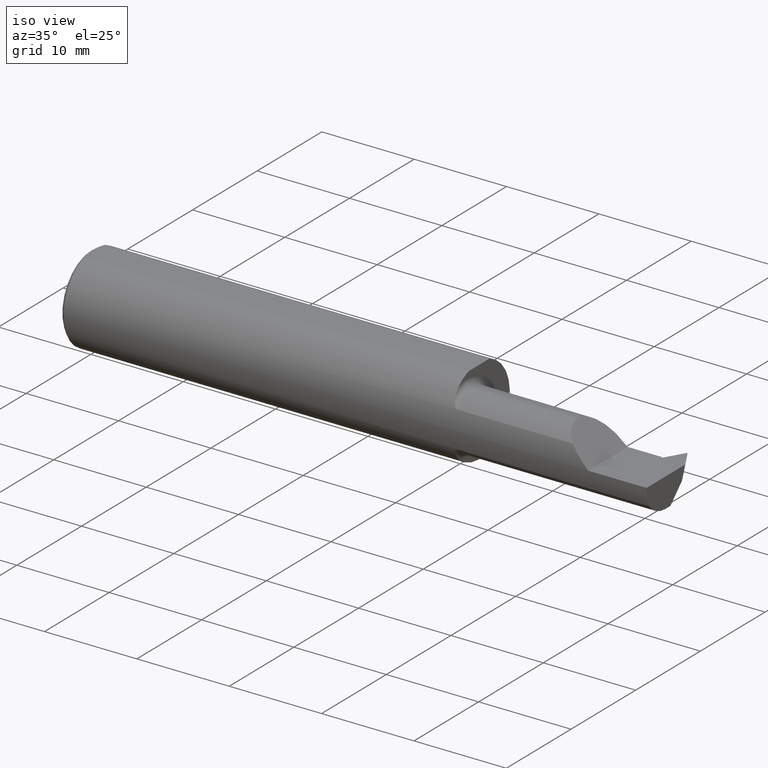
[diagram: clean part render]
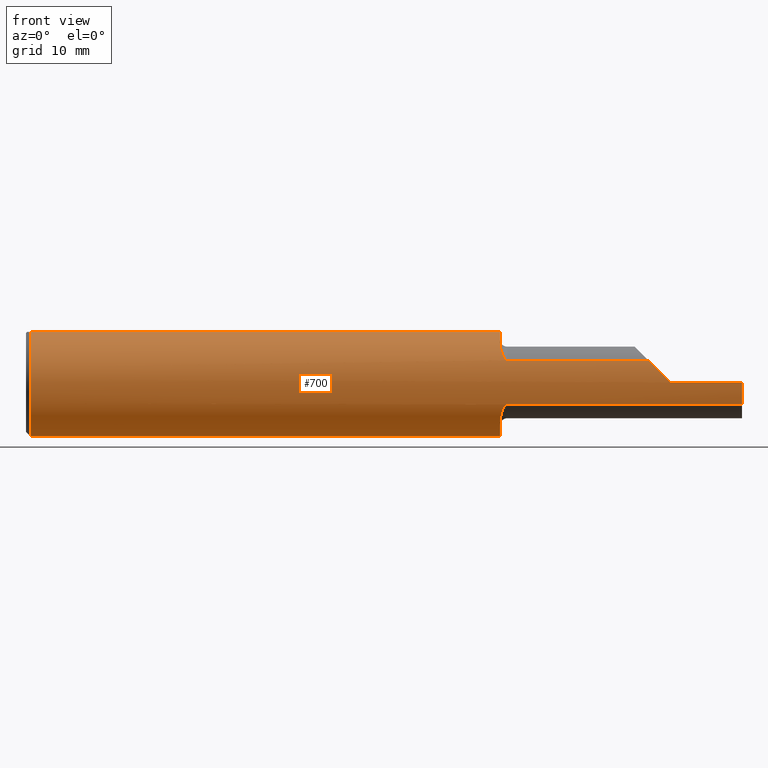
[diagram: tour spotlight — one face highlighted and labeled with its STEP entity id]
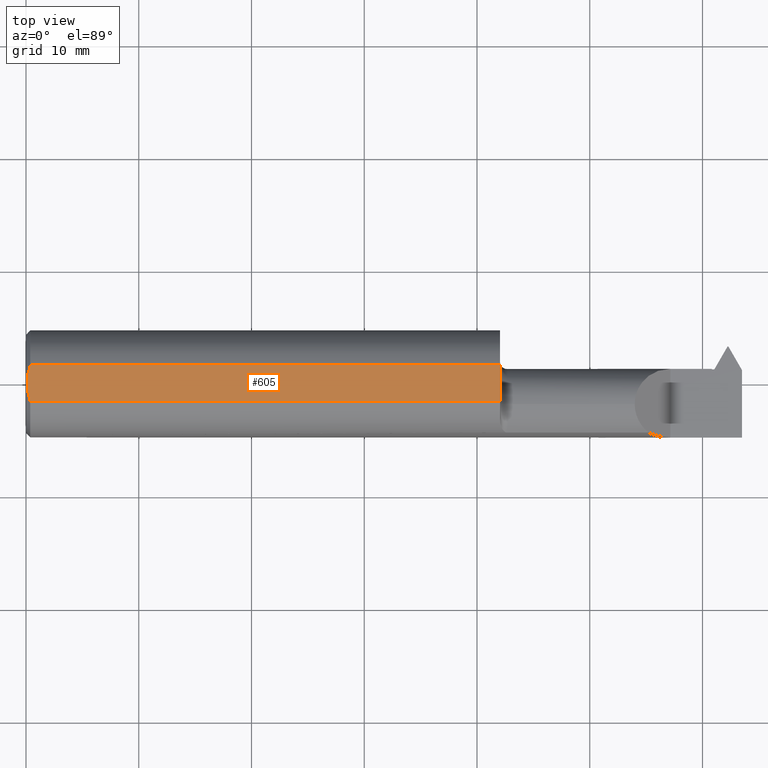
[diagram: tour spotlight — one face highlighted and labeled with its STEP entity id]
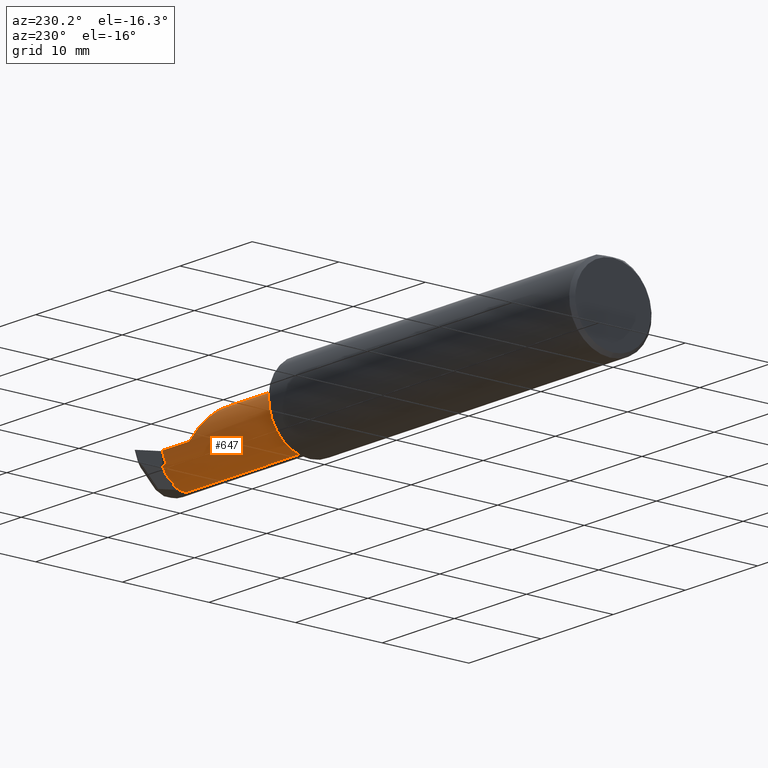
[diagram: tour spotlight — one face highlighted and labeled with its STEP entity id]
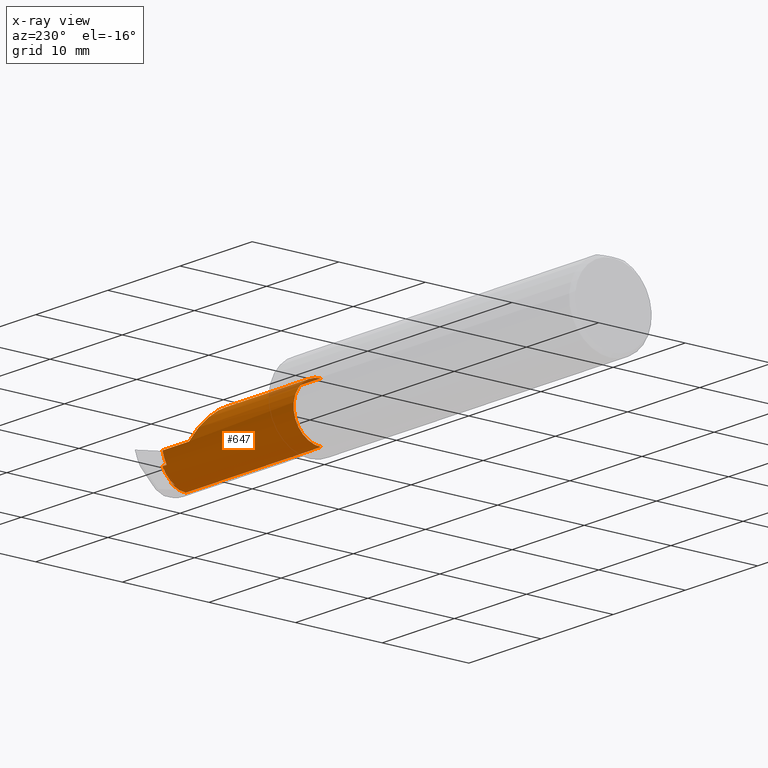
[diagram: x-ray of the same camera — body ghosted, this tour face saturated]
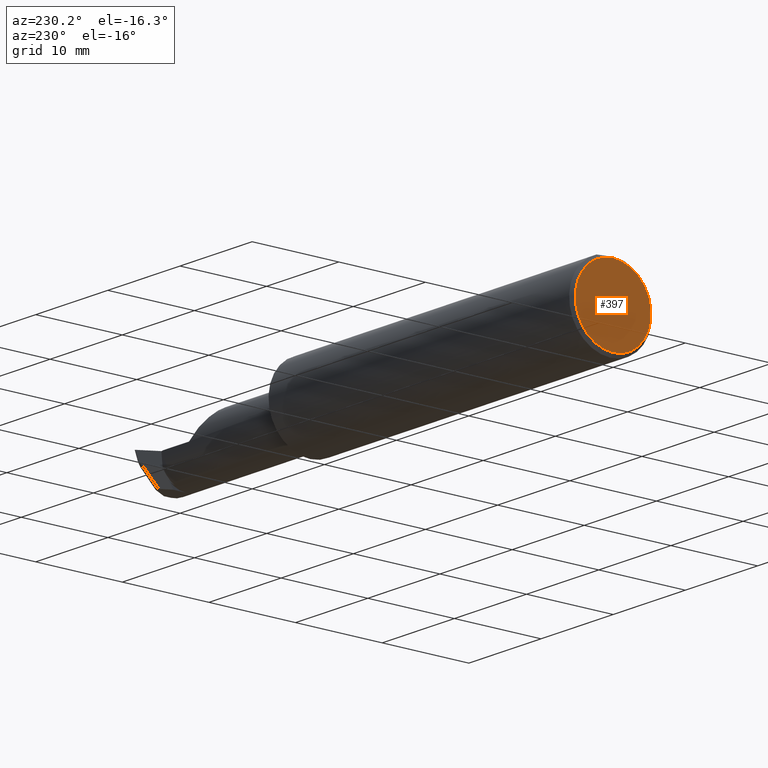
[diagram: tour spotlight — one face highlighted and labeled with its STEP entity id]
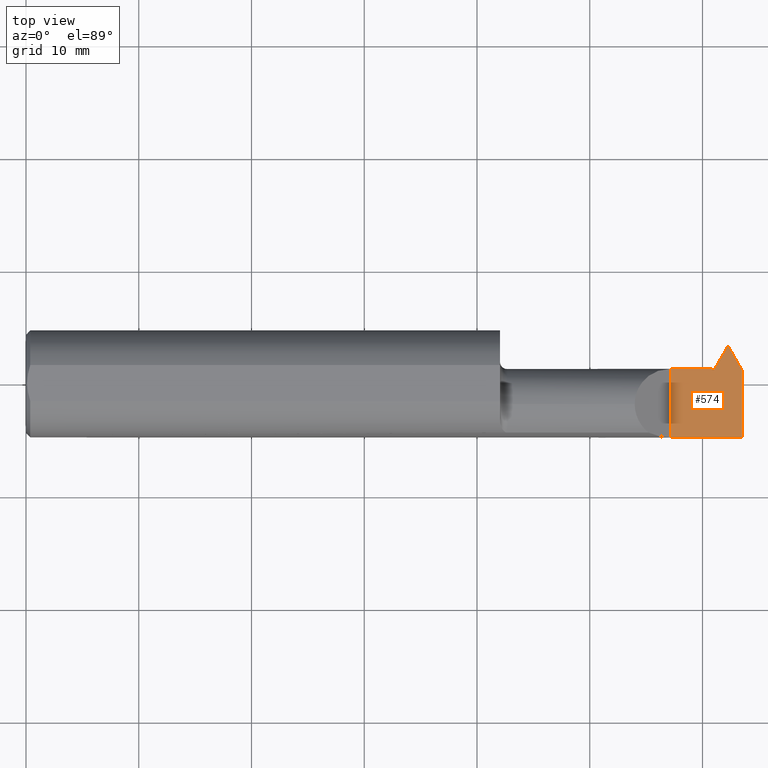
[diagram: tour spotlight — one face highlighted and labeled with its STEP entity id]
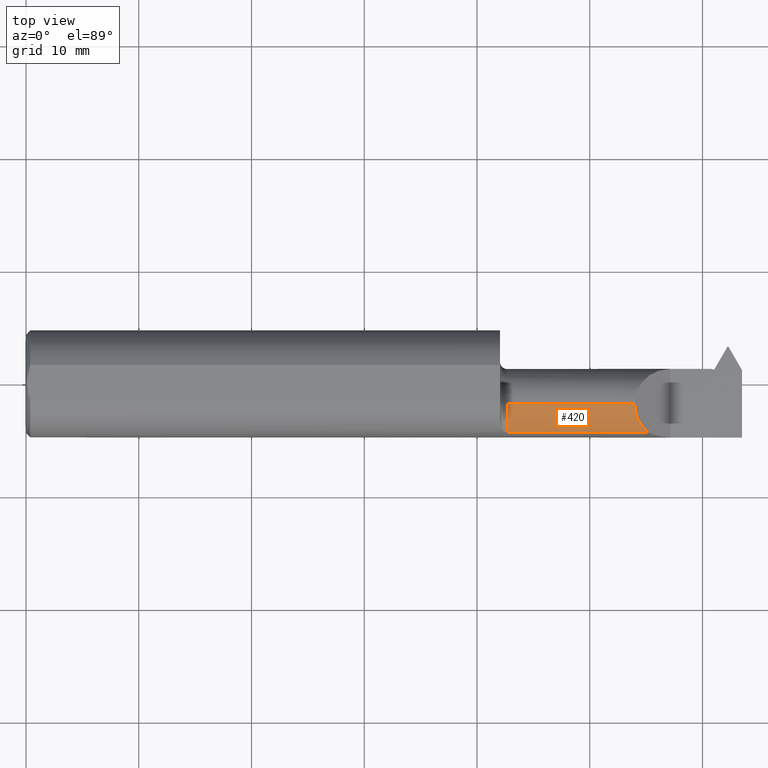
[diagram: tour spotlight — one face highlighted and labeled with its STEP entity id]
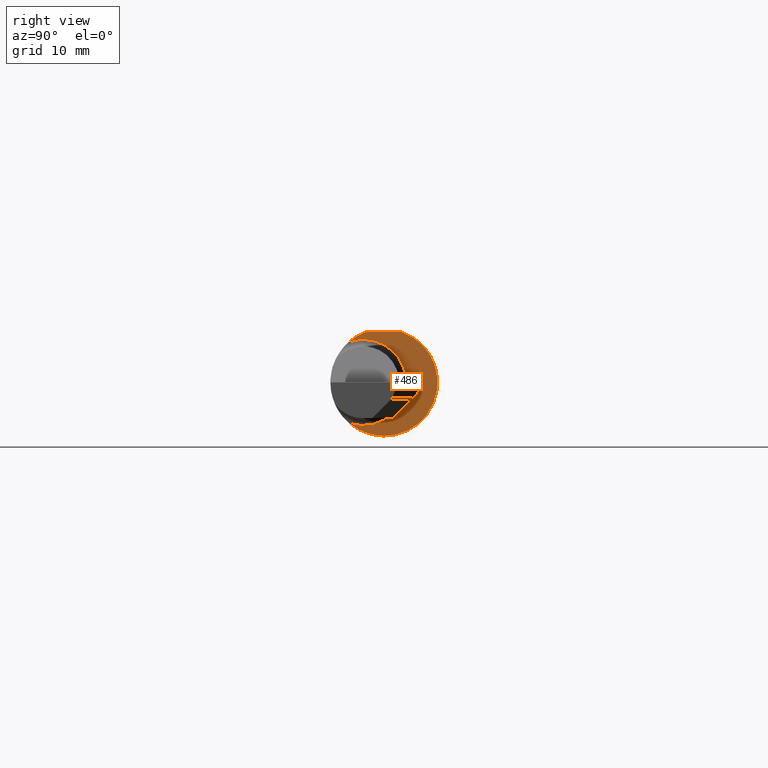
[diagram: tour spotlight — one face highlighted and labeled with its STEP entity id]
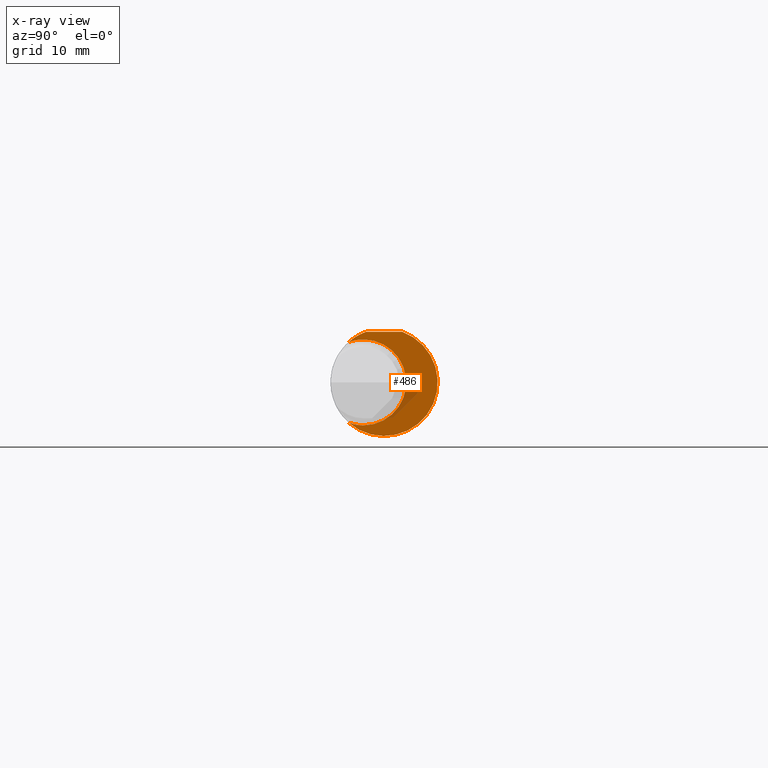
[diagram: x-ray of the same camera — body ghosted, this tour face saturated]
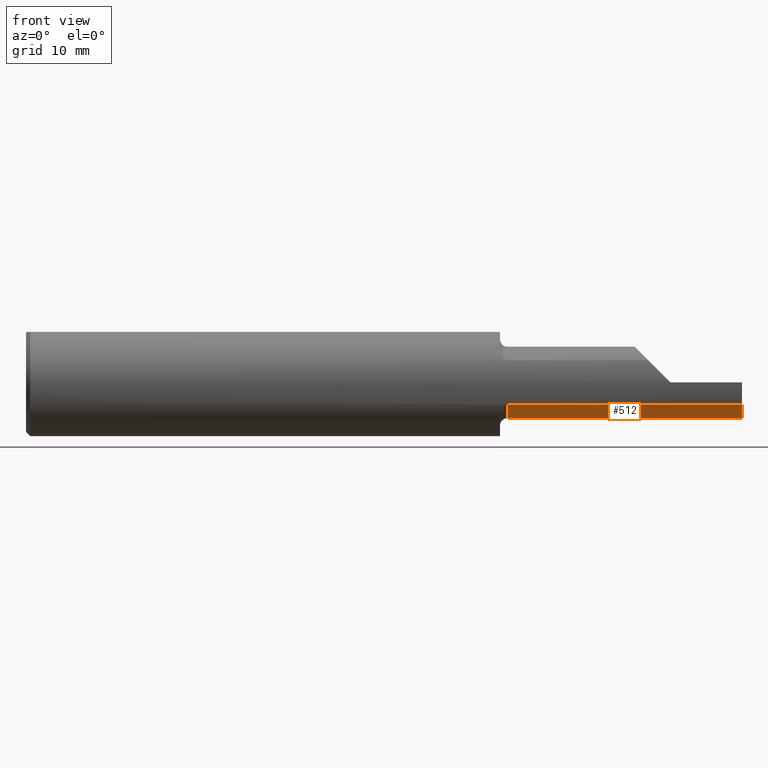
[diagram: tour spotlight — one face highlighted and labeled with its STEP entity id]
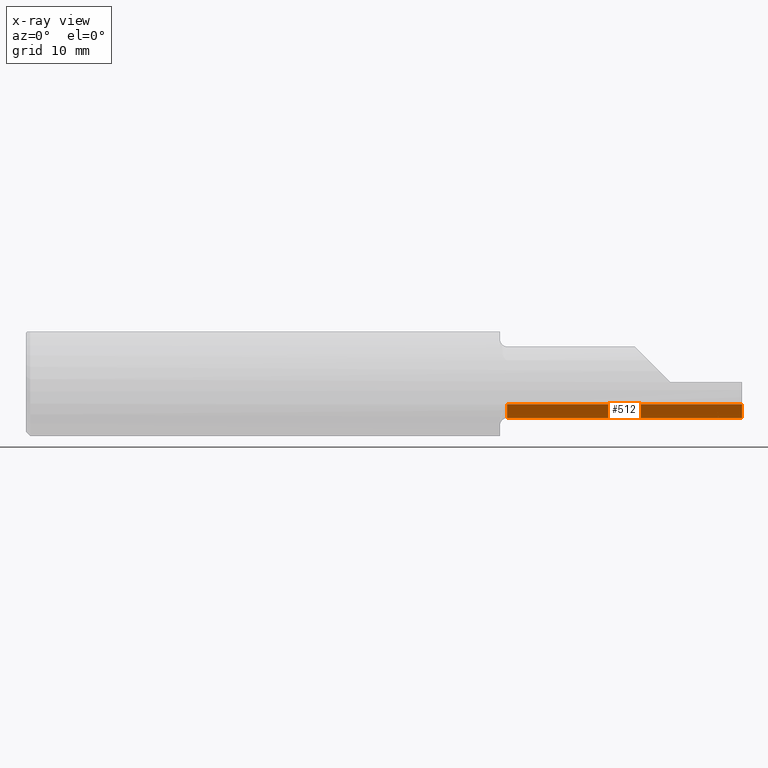
[diagram: x-ray of the same camera — body ghosted, this tour face saturated]
A machine part: a face-by-face anatomy tour. The part has 28 B-rep faces; the first image is the clean iso view, then the 8 largest visible faces are spotlighted one at a time (largest first), each with its STEP entity span.

Face 1 — front view, entity #700. In plain terms, the highlighted cylindrical surface (partial cylindrical patch) has radius 4.7587 mm, axis along (-1, -0, -0).
Definition (entity closure, byte-faithful):
#17 = VERTEX_POINT ( 'NONE', #983 ) ;
#19 = EDGE_CURVE ( 'NONE', #954, #35, #969, .T. ) ;
#20 = CARTESIAN_POINT ( 'NONE',  ( 0.01500000000000079048, -0.06325108694718213631, 0.1763499999999999790 ) ) ;
#24 = CYLINDRICAL_SURFACE ( 'NONE', #946, 0.1873499999999999888 ) ;
#25 = CARTESIAN_POINT ( 'NONE',  ( 2.250000000000000000, -0.1873499999999999610, -6.429183357567478880E-17 ) ) ;
#30 = AXIS2_PLACEMENT_3D ( 'NONE', #48, #417, #630 ) ;
#31 = DIRECTION ( 'NONE',  ( 0.000000000000000000, 0.000000000000000000, 1.000000000000000000 ) ) ;
#34 = CARTESIAN_POINT ( 'NONE',  ( 1.672402770576354669, -0.1687580686002391195, 0.08138221229323114314 ) ) ;
#35 = VERTEX_POINT ( 'NONE', #619 ) ;
#42 = CARTESIAN_POINT ( 'NONE',  ( 1.678119196786478584, -0.1707639599170699130, 0.07706940050007769771 ) ) ;
#48 = CARTESIAN_POINT ( 'NONE',  ( 0.01500000000000079568, 0.000000000000000000, 0.000000000000000000 ) ) ;
#65 = CARTESIAN_POINT ( 'NONE',  ( 2.223443328839086242, -0.1873000608423838198, 0.02690667116091345970 ) ) ;
#72 = DIRECTION ( 'NONE',  ( -1.000000000000000000, -0.000000000000000000, -0.000000000000000000 ) ) ;
#78 = CARTESIAN_POINT ( 'NONE',  ( 1.655000000000000249, 0.000000000000000000, 0.000000000000000000 ) ) ;
#80 = CARTESIAN_POINT ( 'NONE',  ( 1.676412728618681180, -0.1703887611576448968, -0.07790427710188339849 ) ) ;
#99 = DIRECTION ( 'NONE',  ( 0.000000000000000000, 0.000000000000000000, 1.000000000000000000 ) ) ;
#105 = VERTEX_POINT ( 'NONE', #306 ) ;
#107 = DIRECTION ( 'NONE',  ( 0.000000000000000000, 0.000000000000000000, -1.000000000000000000 ) ) ;
#111 = AXIS2_PLACEMENT_3D ( 'NONE', #925, #247, #31 ) ;
#122 = EDGE_CURVE ( 'NONE', #726, #139, #609, .T. ) ;
#123 = EDGE_LOOP ( 'NONE', ( #152, #516, #643, #557, #462, #549, #213, #170, #439, #646, #359, #206, #281, #297 ) ) ;
#125 = CARTESIAN_POINT ( 'NONE',  ( 1.663471533398396041, -0.1602710687746327634, 0.09725558226055719402 ) ) ;
#131 = EDGE_CURVE ( 'NONE', #105, #35, #237, .T. ) ;
#139 = VERTEX_POINT ( 'NONE', #599 ) ;
#150 = VERTEX_POINT ( 'NONE', #530 ) ;
#152 = ORIENTED_EDGE ( 'NONE', *, *, #131, .F. ) ;
#155 = EDGE_CURVE ( 'NONE', #615, #370, #764, .T. ) ;
#170 = ORIENTED_EDGE ( 'NONE', *, *, #744, .F. ) ;
#187 = DIRECTION ( 'NONE',  ( 1.000000000000000000, 0.000000000000000000, 0.000000000000000000 ) ) ;
#189 = CARTESIAN_POINT ( 'NONE',  ( 1.661436535702075945, -0.1564726682735308738, 0.1032790376104839730 ) ) ;
#194 = CIRCLE ( 'NONE', #689, 0.1873499999999999888 ) ;
#202 = CARTESIAN_POINT ( 'NONE',  ( 1.673558876738254320, -0.1693773766851885965, 0.08007975305238296260 ) ) ;
#206 = ORIENTED_EDGE ( 'NONE', *, *, #122, .T. ) ;
#213 = ORIENTED_EDGE ( 'NONE', *, *, #952, .T. ) ;
#225 = CIRCLE ( 'NONE', #30, 0.1873499999999999888 ) ;
#229 = EDGE_CURVE ( 'NONE', #954, #139, #499, .T. ) ;
#231 = CARTESIAN_POINT ( 'NONE',  ( 1.669299808151414544, -0.1667638676707169920, -0.08543442767820320916 ) ) ;
#233 = CARTESIAN_POINT ( 'NONE',  ( 2.500000000000000000, -0.1873499999999998222, -6.429183357567480113E-17 ) ) ;
#234 = CARTESIAN_POINT ( 'NONE',  ( 2.500000000000000000, 0.06325108694718213631, 0.1763499999999999790 ) ) ;
#237 = LINE ( 'NONE', #243, #736 ) ;
#243 = CARTESIAN_POINT ( 'NONE',  ( 2.027500000000000302, -0.1707639599170698019, -0.07706940050007766996 ) ) ;
#244 = CARTESIAN_POINT ( 'NONE',  ( 1.656555970616603979, -0.1439812988895032841, -0.1207222593517345427 ) ) ;
#247 = DIRECTION ( 'NONE',  ( -1.000000000000000000, -0.000000000000000000, -0.000000000000000000 ) ) ;
#256 = CARTESIAN_POINT ( 'NONE',  ( 2.500000000000000000, -0.06325108694718213631, 0.1763499999999999790 ) ) ;
#264 = CARTESIAN_POINT ( 'NONE',  ( 2.173280599499920918, -0.1707639599170693578, 0.07706940050007844711 ) ) ;
#269 = DIRECTION ( 'NONE',  ( 0.000000000000000000, 0.000000000000000000, -1.000000000000000000 ) ) ;
#270 = CARTESIAN_POINT ( 'NONE',  ( 1.658207941101452976, -0.1482224317505124456, 0.1148057762150967581 ) ) ;
#276 = VECTOR ( 'NONE', #855, 39.37007874015748143 ) ;
#281 = ORIENTED_EDGE ( 'NONE', *, *, #229, .F. ) ;
#297 = ORIENTED_EDGE ( 'NONE', *, *, #19, .T. ) ;
#306 = CARTESIAN_POINT ( 'NONE',  ( 2.500000000000000000, -0.1707639599170698019, -0.07706940050007768384 ) ) ;
#320 = CARTESIAN_POINT ( 'NONE',  ( 1.655000000000000249, -0.1232518659295093050, -0.1410992560040422727 ) ) ;
#324 = DIRECTION ( 'NONE',  ( -1.000000000000000000, -0.000000000000000000, -0.000000000000000000 ) ) ;
#340 = VECTOR ( 'NONE', #748, 39.37007874015748143 ) ;
#345 = CARTESIAN_POINT ( 'NONE',  ( 1.667679829691370630, -0.1652024577544480843, 0.08842811073770914798 ) ) ;
#354 = CARTESIAN_POINT ( 'NONE',  ( 1.676406265684706742, -0.1703893073657099244, 0.07790344355110689900 ) ) ;
#359 = ORIENTED_EDGE ( 'NONE', *, *, #962, .T. ) ;
#361 = DIRECTION ( 'NONE',  ( 1.000000000000000000, 0.000000000000000000, 0.000000000000000000 ) ) ;
#370 = VERTEX_POINT ( 'NONE', #25 ) ;
#384 = CARTESIAN_POINT ( 'NONE',  ( 1.680000000000000160, -0.1707639599170698019, -0.07706940050007766996 ) ) ;
#386 = EDGE_CURVE ( 'NONE', #662, #150, #194, .T. ) ;
#387 = CARTESIAN_POINT ( 'NONE',  ( 1.678132574457247950, -0.1707639599170699130, -0.07706940050007766996 ) ) ;
#408 = CARTESIAN_POINT ( 'NONE',  ( 2.500000000000000000, 0.000000000000000000, 0.000000000000000000 ) ) ;
#417 = DIRECTION ( 'NONE',  ( 1.000000000000000000, -0.000000000000000000, -0.000000000000000000 ) ) ;
#423 = CARTESIAN_POINT ( 'NONE',  ( 1.655000000000000249, -0.1232518659295093050, 0.1410992560040422727 ) ) ;
#435 = EDGE_CURVE ( 'NONE', #777, #729, #735, .T. ) ;
#439 = ORIENTED_EDGE ( 'NONE', *, *, #687, .T. ) ;
#460 = CARTESIAN_POINT ( 'NONE',  ( 1.663464385422889436, -0.1602677418389839570, -0.09726402398944666849 ) ) ;
#462 = ORIENTED_EDGE ( 'NONE', *, *, #621, .T. ) ;
#464 = DIRECTION ( 'NONE',  ( 1.000000000000000000, -0.000000000000000000, -0.000000000000000000 ) ) ;
#471 = AXIS2_PLACEMENT_3D ( 'NONE', #78, #818, #606 ) ;
#473 = DIRECTION ( 'NONE',  ( -1.000000000000000000, -0.000000000000000000, -0.000000000000000000 ) ) ;
#481 = DIRECTION ( 'NONE',  ( 0.000000000000000000, 0.000000000000000000, -1.000000000000000000 ) ) ;
#487 = LINE ( 'NONE', #256, #276 ) ;
#494 = CARTESIAN_POINT ( 'NONE',  ( 1.669265545959849995, -0.1667364282984900303, 0.08548857678050762743 ) ) ;
#499 = CIRCLE ( 'NONE', #471, 0.1873499999999999888 ) ;
#514 = CARTESIAN_POINT ( 'NONE',  ( 2.250000000000000000, -0.1873496730715054903, 0.0003499999999991848933 ) ) ;
#516 = ORIENTED_EDGE ( 'NONE', *, *, #683, .F. ) ;
#523 = CARTESIAN_POINT ( 'NONE',  ( 1.673606395404011238, -0.1693970531853373485, -0.08003777040702683698 ) ) ;
#530 = CARTESIAN_POINT ( 'NONE',  ( 0.01500000000000079568, 0.000000000000000000, -0.1873499999999999888 ) ) ;
#536 = CARTESIAN_POINT ( 'NONE',  ( 1.661432066522875450, -0.1564710502669967307, -0.1032857535508500957 ) ) ;
#544 = CARTESIAN_POINT ( 'NONE',  ( 1.655000000000000249, 0.000000000000000000, 0.000000000000000000 ) ) ;
#549 = ORIENTED_EDGE ( 'NONE', *, *, #435, .F. ) ;
#552 = FACE_OUTER_BOUND ( 'NONE', #123, .T. ) ;
#556 = CARTESIAN_POINT ( 'NONE',  ( 1.654999999999999805, -0.1287813884456101288, 0.1362691528049925216 ) ) ;
#557 = ORIENTED_EDGE ( 'NONE', *, *, #762, .T. ) ;
#581 = VECTOR ( 'NONE', #324, 39.37007874015748143 ) ;
#599 = CARTESIAN_POINT ( 'NONE',  ( 1.655000000000000249, 0.06325108694718213631, 0.1763499999999999790 ) ) ;
#606 = DIRECTION ( 'NONE',  ( 0.000000000000000000, 0.000000000000000000, -1.000000000000000000 ) ) ;
#609 = LINE ( 'NONE', #234, #340 ) ;
#610 = CARTESIAN_POINT ( 'NONE',  ( 1.672430508348289102, -0.1687732045416835414, -0.08135065796925473880 ) ) ;
#615 = VERTEX_POINT ( 'NONE', #233 ) ;
#617 = CARTESIAN_POINT ( 'NONE',  ( 1.655000000000000249, -0.1232518659295093050, 0.1410992560040422727 ) ) ;
#619 = CARTESIAN_POINT ( 'NONE',  ( 1.680000000000000160, -0.1707639599170698019, -0.07706940050007766996 ) ) ;
#621 = EDGE_CURVE ( 'NONE', #631, #729, #966, .T. ) ;
#630 = DIRECTION ( 'NONE',  ( 0.000000000000000000, 0.000000000000000000, -1.000000000000000000 ) ) ;
#631 = VERTEX_POINT ( 'NONE', #514 ) ;
#633 = CARTESIAN_POINT ( 'NONE',  ( 2.500000000000000000, 0.000000000000000000, 0.000000000000000000 ) ) ;
#639 = CARTESIAN_POINT ( 'NONE',  ( 0.01500000000000079568, 0.000000000000000000, 0.000000000000000000 ) ) ;
#643 = ORIENTED_EDGE ( 'NONE', *, *, #155, .T. ) ;
#644 = CARTESIAN_POINT ( 'NONE',  ( 2.027500000000000302, -0.1707639599170698019, 0.07706940050007766996 ) ) ;
#646 = ORIENTED_EDGE ( 'NONE', *, *, #386, .T. ) ;
#659 = AXIS2_PLACEMENT_3D ( 'NONE', #544, #187, #481 ) ;
#662 = VERTEX_POINT ( 'NONE', #20 ) ;
#663 = CARTESIAN_POINT ( 'NONE',  ( 2.173280599499920918, -0.1707639599170693578, 0.07706940050007844711 ) ) ;
#674 = CARTESIAN_POINT ( 'NONE',  ( 2.500000000000000000, -0.1873499999999999888, -6.429183357567480113E-17 ) ) ;
#683 = EDGE_CURVE ( 'NONE', #615, #105, #691, .T. ) ;
#687 = EDGE_CURVE ( 'NONE', #17, #662, #487, .T. ) ;
#689 = AXIS2_PLACEMENT_3D ( 'NONE', #639, #464, #269 ) ;
#691 = CIRCLE ( 'NONE', #899, 0.1873499999999999888 ) ;
#692 = VERTEX_POINT ( 'NONE', #617 ) ;
#700 = ADVANCED_FACE ( 'NONE', ( #552 ), #24, .T. ) ;
#715 = CARTESIAN_POINT ( 'NONE',  ( 1.655424272813302844, -0.1340287381043765158, 0.1311054684688080785 ) ) ;
#726 = VERTEX_POINT ( 'NONE', #775 ) ;
#729 = VERTEX_POINT ( 'NONE', #264 ) ;
#735 = LINE ( 'NONE', #644, #869 ) ;
#736 = VECTOR ( 'NONE', #72, 39.37007874015748143 ) ;
#744 = EDGE_CURVE ( 'NONE', #17, #692, #789, .T. ) ;
#747 = CARTESIAN_POINT ( 'NONE',  ( 2.197486258657502134, -0.1816884877910424079, 0.05286374134249727241 ) ) ;
#748 = DIRECTION ( 'NONE',  ( 1.000000000000000000, 0.000000000000000000, 0.000000000000000000 ) ) ;
#762 = EDGE_CURVE ( 'NONE', #370, #631, #911, .T. ) ;
#764 = LINE ( 'NONE', #674, #581 ) ;
#775 = CARTESIAN_POINT ( 'NONE',  ( 0.01500000000000079568, 0.06325108694718213631, 0.1763499999999999790 ) ) ;
#777 = VERTEX_POINT ( 'NONE', #845 ) ;
#789 = CIRCLE ( 'NONE', #659, 0.1873499999999999888 ) ;
#796 = CARTESIAN_POINT ( 'NONE',  ( 1.657031986092417419, -0.1437385609081069104, 0.1203809478627894392 ) ) ;
#818 = DIRECTION ( 'NONE',  ( 1.000000000000000000, 0.000000000000000000, 0.000000000000000000 ) ) ;
#845 = CARTESIAN_POINT ( 'NONE',  ( 1.680000000000000160, -0.1707639599170698019, 0.07706940050007766996 ) ) ;
#848 = CARTESIAN_POINT ( 'NONE',  ( 1.667704374933955513, -0.1652286770924342452, -0.08837992419368186081 ) ) ;
#850 = DIRECTION ( 'NONE',  ( 1.000000000000000000, 0.000000000000000000, 0.000000000000000000 ) ) ;
#855 = DIRECTION ( 'NONE',  ( -1.000000000000000000, -0.000000000000000000, -0.000000000000000000 ) ) ;
#862 = CARTESIAN_POINT ( 'NONE',  ( 1.680000000000000160, -0.1707639599170698019, 0.07706940050007766996 ) ) ;
#869 = VECTOR ( 'NONE', #361, 39.37007874015748143 ) ;
#899 = AXIS2_PLACEMENT_3D ( 'NONE', #633, #850, #107 ) ;
#911 = CIRCLE ( 'NONE', #111, 0.1873499999999999888 ) ;
#912 = CARTESIAN_POINT ( 'NONE',  ( 1.655000000000001137, -0.1343272889970693051, -0.1314247431986991232 ) ) ;
#925 = CARTESIAN_POINT ( 'NONE',  ( 2.250000000000000000, 0.000000000000000000, 0.000000000000000000 ) ) ;
#927 = CARTESIAN_POINT ( 'NONE',  ( 1.655000000000000249, -0.1232518659295093050, -0.1410992560040422727 ) ) ;
#936 = B_SPLINE_CURVE_WITH_KNOTS ( 'NONE', 3,
 ( #862, #42, #354, #202, #34, #494, #345, #125, #189, #270, #796, #715, #556, #423 ),
 .UNSPECIFIED., .F., .F.,
 ( 4, 2, 2, 2, 2, 2, 4 ),
 ( 0.000000000000000000, 0.0001403017184444821667, 0.0002806034368889643335, 0.0005612068737779168492, 0.001122413747555820905, 0.001683620621333724744, 0.002244827495111628799 ),
 .UNSPECIFIED. ) ;
#946 = AXIS2_PLACEMENT_3D ( 'NONE', #408, #473, #99 ) ;
#952 = EDGE_CURVE ( 'NONE', #777, #692, #936, .T. ) ;
#954 = VERTEX_POINT ( 'NONE', #927 ) ;
#962 = EDGE_CURVE ( 'NONE', #150, #726, #225, .T. ) ;
#966 =( BOUNDED_CURVE ( )  B_SPLINE_CURVE ( 3, ( #973, #65, #747, #663 ),
 .UNSPECIFIED., .F., .F. ) 
 B_SPLINE_CURVE_WITH_KNOTS ( ( 4, 4 ),
 ( 4.714257142666966161, 5.136341099405672850 ),
 .UNSPECIFIED. ) 
 CURVE ( )  GEOMETRIC_REPRESENTATION_ITEM ( )  RATIONAL_B_SPLINE_CURVE ( ( 1.000000000000000000, 0.9852087820824323439, 0.9852087820824323439, 1.000000000000000000 ) ) 
 REPRESENTATION_ITEM ( '' )  );
#969 = B_SPLINE_CURVE_WITH_KNOTS ( 'NONE', 3,
 ( #320, #912, #244, #536, #460, #848, #231, #610, #523, #80, #387, #384 ),
 .UNSPECIFIED., .F., .F.,
 ( 4, 2, 2, 2, 2, 4 ),
 ( 0.000000000000000000, 0.001104617015978687352, 0.001656925523968030920, 0.001933079777962706282, 0.002071156904960049817, 0.002209234031957392919 ),
 .UNSPECIFIED. ) ;
#973 = CARTESIAN_POINT ( 'NONE',  ( 2.250000000000000000, -0.1873496730715054903, 0.0003499999999991848933 ) ) ;
#983 = CARTESIAN_POINT ( 'NONE',  ( 1.655000000000000249, -0.06325108694718215019, 0.1763499999999999790 ) ) ;

Face 2 — top view, entity #605. In plain terms, the highlighted planar face has unit normal (-0, 0, -1).
Definition (entity closure, byte-faithful):
#6 = CARTESIAN_POINT ( 'NONE',  ( 0.01155577088586097305, 0.05304926503900153634, 0.1763499999999999512 ) ) ;
#7 = DIRECTION ( 'NONE',  ( 0.000000000000000000, -1.000000000000000000, 0.000000000000000000 ) ) ;
#13 = EDGE_CURVE ( 'NONE', #139, #17, #613, .T. ) ;
#14 = ORIENTED_EDGE ( 'NONE', *, *, #167, .T. ) ;
#17 = VERTEX_POINT ( 'NONE', #983 ) ;
#20 = CARTESIAN_POINT ( 'NONE',  ( 0.01500000000000079048, -0.06325108694718213631, 0.1763499999999999790 ) ) ;
#71 = DIRECTION ( 'NONE',  ( -1.000000000000000000, 0.000000000000000000, 0.000000000000000000 ) ) ;
#82 = PLANE ( 'NONE',  #224 ) ;
#122 = EDGE_CURVE ( 'NONE', #726, #139, #609, .T. ) ;
#139 = VERTEX_POINT ( 'NONE', #599 ) ;
#167 = EDGE_CURVE ( 'NONE', #726, #461, #571, .T. ) ;
#224 = AXIS2_PLACEMENT_3D ( 'NONE', #521, #965, #71 ) ;
#234 = CARTESIAN_POINT ( 'NONE',  ( 2.500000000000000000, 0.06325108694718213631, 0.1763499999999999790 ) ) ;
#256 = CARTESIAN_POINT ( 'NONE',  ( 2.500000000000000000, -0.06325108694718213631, 0.1763499999999999790 ) ) ;
#273 = CARTESIAN_POINT ( 'NONE',  ( 0.004991821518933527678, -0.02143118227845419027, 0.1763500000000000068 ) ) ;
#276 = VECTOR ( 'NONE', #855, 39.37007874015748143 ) ;
#340 = VECTOR ( 'NONE', #748, 39.37007874015748143 ) ;
#413 = ORIENTED_EDGE ( 'NONE', *, *, #687, .F. ) ;
#440 = FACE_OUTER_BOUND ( 'NONE', #653, .T. ) ;
#441 = CARTESIAN_POINT ( 'NONE',  ( 0.005015674426658929021, 0.02160712711892616780, 0.1763499999999999790 ) ) ;
#455 = CARTESIAN_POINT ( 'NONE',  ( 0.003999999999998503017, 1.478949923165211460E-16, 0.1763499999999999790 ) ) ;
#457 = EDGE_CURVE ( 'NONE', #461, #662, #950, .T. ) ;
#461 = VERTEX_POINT ( 'NONE', #955 ) ;
#469 = ORIENTED_EDGE ( 'NONE', *, *, #13, .F. ) ;
#487 = LINE ( 'NONE', #256, #276 ) ;
#508 = CARTESIAN_POINT ( 'NONE',  ( 0.003999999999998503017, 1.478949923165211460E-16, 0.1763499999999999790 ) ) ;
#521 = CARTESIAN_POINT ( 'NONE',  ( 0.000000000000000000, 0.1749999999999999889, 0.1763499999999999790 ) ) ;
#571 = B_SPLINE_CURVE_WITH_KNOTS ( 'NONE', 3,
 ( #830, #6, #906, #441, #686, #455 ),
 .UNSPECIFIED., .F., .F.,
 ( 4, 2, 4 ),
 ( 0.004260876108247118113, 0.005070351723613903024, 0.005879827338980687934 ),
 .UNSPECIFIED. ) ;
#599 = CARTESIAN_POINT ( 'NONE',  ( 1.655000000000000249, 0.06325108694718213631, 0.1763499999999999790 ) ) ;
#602 = CARTESIAN_POINT ( 'NONE',  ( 1.655000000000000249, 0.1749999999999999889, 0.1763499999999999790 ) ) ;
#605 = ADVANCED_FACE ( 'NONE', ( #440 ), #82, .F. ) ;
#609 = LINE ( 'NONE', #234, #340 ) ;
#613 = LINE ( 'NONE', #602, #910 ) ;
#653 = EDGE_LOOP ( 'NONE', ( #469, #712, #14, #914, #413 ) ) ;
#654 = CARTESIAN_POINT ( 'NONE',  ( 0.01157529649258904302, -0.05310709997271137461, 0.1763500000000000068 ) ) ;
#662 = VERTEX_POINT ( 'NONE', #20 ) ;
#686 = CARTESIAN_POINT ( 'NONE',  ( 0.004000000000000399070, 0.01076648422130179264, 0.1763500000000000068 ) ) ;
#687 = EDGE_CURVE ( 'NONE', #17, #662, #487, .T. ) ;
#712 = ORIENTED_EDGE ( 'NONE', *, *, #122, .F. ) ;
#726 = VERTEX_POINT ( 'NONE', #775 ) ;
#727 = CARTESIAN_POINT ( 'NONE',  ( 0.004000000000000362640, -0.01076149482173471492, 0.1763499999999999790 ) ) ;
#748 = DIRECTION ( 'NONE',  ( 1.000000000000000000, 0.000000000000000000, 0.000000000000000000 ) ) ;
#775 = CARTESIAN_POINT ( 'NONE',  ( 0.01500000000000079568, 0.06325108694718213631, 0.1763499999999999790 ) ) ;
#798 = CARTESIAN_POINT ( 'NONE',  ( 0.01500000000000079048, -0.06325108694718213631, 0.1763499999999999790 ) ) ;
#805 = CARTESIAN_POINT ( 'NONE',  ( 0.008774081248144433368, -0.04260406931483737974, 0.1763499999999999790 ) ) ;
#830 = CARTESIAN_POINT ( 'NONE',  ( 0.01500000000000079568, 0.06325108694718213631, 0.1763499999999999790 ) ) ;
#855 = DIRECTION ( 'NONE',  ( -1.000000000000000000, -0.000000000000000000, -0.000000000000000000 ) ) ;
#906 = CARTESIAN_POINT ( 'NONE',  ( 0.008798171893809259708, 0.04269596770163366223, 0.1763499999999999790 ) ) ;
#910 = VECTOR ( 'NONE', #7, 39.37007874015748143 ) ;
#914 = ORIENTED_EDGE ( 'NONE', *, *, #457, .T. ) ;
#950 = B_SPLINE_CURVE_WITH_KNOTS ( 'NONE', 3,
 ( #508, #727, #273, #805, #654, #798 ),
 .UNSPECIFIED., .F., .F.,
 ( 4, 2, 4 ),
 ( 0.005879827338980687934, 0.006688927827499994636, 0.007498028316019300470 ),
 .UNSPECIFIED. ) ;
#955 = CARTESIAN_POINT ( 'NONE',  ( 0.003999999999998503017, 1.478949923165211460E-16, 0.1763499999999999790 ) ) ;
#965 = DIRECTION ( 'NONE',  ( -0.000000000000000000, 0.000000000000000000, -1.000000000000000000 ) ) ;
#983 = CARTESIAN_POINT ( 'NONE',  ( 1.655000000000000249, -0.06325108694718215019, 0.1763499999999999790 ) ) ;

Face 3 — auxiliary view, entity #647. An x-ray twin of the same camera follows (body ghosted, this face saturated) — the face is partly hidden behind the body. In plain terms, the highlighted cylindrical surface (edge-blend (fillet) strip) has radius 3.175 mm, axis along (-1, -0, -0).
Definition (entity closure, byte-faithful):
#8 = DIRECTION ( 'NONE',  ( 0.000000000000000000, 0.000000000000000000, 1.000000000000000000 ) ) ;
#9 = CARTESIAN_POINT ( 'NONE',  ( 2.409370448767462314, 0.03851830851078916901, -0.05773402954892806194 ) ) ;
#11 = VECTOR ( 'NONE', #317, 39.37007874015748143 ) ;
#36 = ORIENTED_EDGE ( 'NONE', *, *, #197, .T. ) ;
#54 = CARTESIAN_POINT ( 'NONE',  ( 2.385548931050876842, 0.04119893105087687329, -0.05226509597430407938 ) ) ;
#55 = EDGE_CURVE ( 'NONE', #271, #661, #456, .T. ) ;
#67 = EDGE_CURVE ( 'NONE', #513, #637, #572, .T. ) ;
#68 = CARTESIAN_POINT ( 'NONE',  ( 2.413734622005796027, 0.008361908784097661293, -0.09544939905744566355 ) ) ;
#76 = CARTESIAN_POINT ( 'NONE',  ( 1.655000000000000249, -0.07234999999999998377, 0.000000000000000000 ) ) ;
#81 = EDGE_CURVE ( 'NONE', #171, #637, #364, .T. ) ;
#85 = DIRECTION ( 'NONE',  ( -1.000000000000000000, -0.000000000000000000, -0.000000000000000000 ) ) ;
#88 = CARTESIAN_POINT ( 'NONE',  ( 2.411507999980803341, -0.007106926527362874245, -0.1070616118923673199 ) ) ;
#94 = AXIS2_PLACEMENT_3D ( 'NONE', #76, #298, #761 ) ;
#100 = CARTESIAN_POINT ( 'NONE',  ( 2.250000000000000000, 0.05264950999903971612, 0.0003499999999991848933 ) ) ;
#113 = EDGE_LOOP ( 'NONE', ( #797, #36, #813, #918, #196, #880, #924, #245, #787, #713, #352, #694, #854 ) ) ;
#117 = CARTESIAN_POINT ( 'NONE',  ( 2.408768555666735978, 0.04119893105087686636, -0.05226509597430411408 ) ) ;
#129 = CARTESIAN_POINT ( 'NONE',  ( 2.409054084941633977, -0.01574417682531606411, -0.1114485566650211257 ) ) ;
#171 = VERTEX_POINT ( 'NONE', #759 ) ;
#179 = CARTESIAN_POINT ( 'NONE',  ( 1.680000000000000160, -0.07234999999999996989, -0.1250000000000000000 ) ) ;
#184 = CARTESIAN_POINT ( 'NONE',  ( 2.125349999999999184, -0.07234999999999998377, 0.1250000000000000000 ) ) ;
#196 = ORIENTED_EDGE ( 'NONE', *, *, #338, .F. ) ;
#197 = EDGE_CURVE ( 'NONE', #171, #347, #318, .T. ) ;
#208 = AXIS2_PLACEMENT_3D ( 'NONE', #638, #85, #8 ) ;
#212 = EDGE_CURVE ( 'NONE', #593, #733, #642, .T. ) ;
#238 = CARTESIAN_POINT ( 'NONE',  ( 2.418197582037931781, -0.07235000000000001152, -0.1250000000000000000 ) ) ;
#241 = LINE ( 'NONE', #534, #11 ) ;
#242 = VECTOR ( 'NONE', #343, 39.37007874015748143 ) ;
#245 = ORIENTED_EDGE ( 'NONE', *, *, #427, .F. ) ;
#250 = CARTESIAN_POINT ( 'NONE',  ( 2.413734622005796027, 0.008361908784097661293, -0.09544939905744566355 ) ) ;
#265 = CARTESIAN_POINT ( 'NONE',  ( 2.125349999999999184, 0.0007108448279458398980, 0.1250000000000000278 ) ) ;
#271 = VERTEX_POINT ( 'NONE', #411 ) ;
#275 = VECTOR ( 'NONE', #314, 39.37007874015748143 ) ;
#298 = DIRECTION ( 'NONE',  ( -1.000000000000000000, -0.000000000000000000, -0.000000000000000000 ) ) ;
#307 =( BOUNDED_CURVE ( )  B_SPLINE_CURVE ( 3, ( #100, #339, #265, #851 ),
 .UNSPECIFIED., .F., .F. ) 
 B_SPLINE_CURVE_WITH_KNOTS ( ( 4, 4 ),
 ( 4.715188984043361842, 6.283185307179586232 ),
 .UNSPECIFIED. ) 
 CURVE ( )  GEOMETRIC_REPRESENTATION_ITEM ( )  RATIONAL_B_SPLINE_CURVE ( ( 1.000000000000000000, 0.8053973591226777362, 0.8053973591226777362, 1.000000000000000000 ) ) 
 REPRESENTATION_ITEM ( '' )  );
#313 = CARTESIAN_POINT ( 'NONE',  ( 2.409054084941633977, 0.03909855666502076027, -0.05660582317468466906 ) ) ;
#314 = DIRECTION ( 'NONE',  ( -1.000000000000000000, -0.000000000000000000, -0.000000000000000000 ) ) ;
#315 = CARTESIAN_POINT ( 'NONE',  ( 2.413734622005796027, 0.008361908784097661293, -0.09544939905744566355 ) ) ;
#316 = CARTESIAN_POINT ( 'NONE',  ( 2.409054084941633977, -0.01574417682531606411, -0.1114485566650211257 ) ) ;
#317 = DIRECTION ( 'NONE',  ( 1.000000000000000000, 0.000000000000000000, 0.000000000000000000 ) ) ;
#318 = LINE ( 'NONE', #669, #835 ) ;
#322 = CARTESIAN_POINT ( 'NONE',  ( 1.680000000000000160, -0.07234999999999998377, 0.000000000000000000 ) ) ;
#333 = DIRECTION ( 'NONE',  ( 1.000000000000000000, 0.000000000000000000, 0.000000000000000000 ) ) ;
#338 = EDGE_CURVE ( 'NONE', #507, #746, #307, .T. ) ;
#339 = CARTESIAN_POINT ( 'NONE',  ( 2.176939441571127176, 0.05244493963352191840, 0.07341055842887181382 ) ) ;
#343 = DIRECTION ( 'NONE',  ( -1.000000000000000000, -0.000000000000000000, -0.000000000000000000 ) ) ;
#344 = DIRECTION ( 'NONE',  ( -1.000000000000000000, -0.000000000000000000, -0.000000000000000000 ) ) ;
#346 = EDGE_CURVE ( 'NONE', #593, #271, #567, .T. ) ;
#347 = VERTEX_POINT ( 'NONE', #179 ) ;
#352 = ORIENTED_EDGE ( 'NONE', *, *, #212, .T. ) ;
#364 =( BOUNDED_CURVE ( )  B_SPLINE_CURVE ( 3, ( #238, #531, #468, #68 ),
 .UNSPECIFIED., .F., .F. ) 
 B_SPLINE_CURVE_WITH_KNOTS ( ( 4, 4 ),
 ( 3.320488901919211866, 4.022422357086396616 ),
 .UNSPECIFIED. ) 
 CURVE ( )  GEOMETRIC_REPRESENTATION_ITEM ( )  RATIONAL_B_SPLINE_CURVE ( ( 1.000000000000000000, 0.9593605234527340375, 0.9593605234527340375, 1.000000000000000000 ) ) 
 REPRESENTATION_ITEM ( '' )  );
#369 = EDGE_CURVE ( 'NONE', #733, #513, #600, .T. ) ;
#385 = CYLINDRICAL_SURFACE ( 'NONE', #94, 0.1250000000000000000 ) ;
#390 = CARTESIAN_POINT ( 'NONE',  ( 2.413075199203178922, 0.0009645913569521091411, -0.1017045626867887076 ) ) ;
#411 = CARTESIAN_POINT ( 'NONE',  ( 2.408768555666735978, 0.04119893105087686636, -0.05226509597430411408 ) ) ;
#412 = CIRCLE ( 'NONE', #533, 0.1250000000000000000 ) ;
#425 = CIRCLE ( 'NONE', #208, 0.1250000000000000000 ) ;
#426 = VERTEX_POINT ( 'NONE', #960 ) ;
#427 = EDGE_CURVE ( 'NONE', #661, #510, #763, .T. ) ;
#454 = CARTESIAN_POINT ( 'NONE',  ( 2.409370448767462314, 0.03851830851078916901, -0.05773402954892806194 ) ) ;
#456 = LINE ( 'NONE', #917, #275 ) ;
#468 = CARTESIAN_POINT ( 'NONE',  ( 2.416100958887603234, -0.01444220765322596148, -0.1147325352947253380 ) ) ;
#478 = LINE ( 'NONE', #685, #242 ) ;
#507 = VERTEX_POINT ( 'NONE', #794 ) ;
#510 = VERTEX_POINT ( 'NONE', #575 ) ;
#513 = VERTEX_POINT ( 'NONE', #129 ) ;
#531 = CARTESIAN_POINT ( 'NONE',  ( 2.417651630723349765, -0.04248585645573448033, -0.1250000000000000278 ) ) ;
#533 = AXIS2_PLACEMENT_3D ( 'NONE', #322, #333, #783 ) ;
#534 = CARTESIAN_POINT ( 'NONE',  ( 1.655000000000000249, 0.05265000000000001623, -6.429183357567480113E-17 ) ) ;
#558 = CARTESIAN_POINT ( 'NONE',  ( 1.680000000000000160, -0.07234999999999998377, 0.1250000000000000000 ) ) ;
#561 = EDGE_CURVE ( 'NONE', #426, #510, #241, .T. ) ;
#567 =( BOUNDED_CURVE ( )  B_SPLINE_CURVE ( 3, ( #635, #916, #779, #117 ),
 .UNSPECIFIED., .F., .F. ) 
 B_SPLINE_CURVE_WITH_KNOTS ( ( 4, 4 ),
 ( 4.411180308844337539, 4.459909643144646552 ),
 .UNSPECIFIED. ) 
 CURVE ( )  GEOMETRIC_REPRESENTATION_ITEM ( )  RATIONAL_B_SPLINE_CURVE ( ( 1.000000000000000000, 0.9998021307870518237, 0.9998021307870518237, 1.000000000000000000 ) ) 
 REPRESENTATION_ITEM ( '' )  );
#572 =( BOUNDED_CURVE ( )  B_SPLINE_CURVE ( 3, ( #316, #88, #390, #250 ),
 .UNSPECIFIED., .F., .T. ) 
 B_SPLINE_CURVE_WITH_KNOTS ( ( 4, 4 ),
 ( 2.826149962439216790, 3.058127945359532696 ),
 .UNSPECIFIED. ) 
 CURVE ( )  GEOMETRIC_REPRESENTATION_ITEM ( )  RATIONAL_B_SPLINE_CURVE ( ( 1.000000000000000000, 0.9955205433440618146, 0.9955205433440618146, 1.000000000000000000 ) ) 
 REPRESENTATION_ITEM ( '' )  );
#575 = CARTESIAN_POINT ( 'NONE',  ( 2.395000000000000018, 0.05265000000000001623, 0.000000000000000000 ) ) ;
#593 = VERTEX_POINT ( 'NONE', #454 ) ;
#600 = CIRCLE ( 'NONE', #705, 0.1250000000000000000 ) ;
#612 = DIRECTION ( 'NONE',  ( -1.000000000000000000, -0.000000000000000000, -0.000000000000000000 ) ) ;
#618 = CARTESIAN_POINT ( 'NONE',  ( 2.409266663148388332, 0.03871363218546797907, -0.05735894390891729810 ) ) ;
#635 = CARTESIAN_POINT ( 'NONE',  ( 2.409370448767462314, 0.03851830851078916901, -0.05773402954892806194 ) ) ;
#637 = VERTEX_POINT ( 'NONE', #315 ) ;
#638 = CARTESIAN_POINT ( 'NONE',  ( 2.250000000000000000, -0.07234999999999998377, 0.000000000000000000 ) ) ;
#642 =( BOUNDED_CURVE ( )  B_SPLINE_CURVE ( 3, ( #9, #618, #974, #313 ),
 .UNSPECIFIED., .F., .T. ) 
 B_SPLINE_CURVE_WITH_KNOTS ( ( 4, 4 ),
 ( 3.446885897117472730, 3.457035344740369442 ),
 .UNSPECIFIED. ) 
 CURVE ( )  GEOMETRIC_REPRESENTATION_ITEM ( )  RATIONAL_B_SPLINE_CURVE ( ( 1.000000000000000000, 0.9999914157445015661, 0.9999914157445015661, 1.000000000000000000 ) ) 
 REPRESENTATION_ITEM ( '' )  );
#647 = ADVANCED_FACE ( 'NONE', ( #678 ), #385, .T. ) ;
#661 = VERTEX_POINT ( 'NONE', #979 ) ;
#669 = CARTESIAN_POINT ( 'NONE',  ( 1.655000000000000249, -0.07234999999999996989, -0.1250000000000000000 ) ) ;
#678 = FACE_OUTER_BOUND ( 'NONE', #113, .T. ) ;
#685 = CARTESIAN_POINT ( 'NONE',  ( 1.655000000000000249, -0.07234999999999998377, 0.1250000000000000000 ) ) ;
#694 = ORIENTED_EDGE ( 'NONE', *, *, #369, .T. ) ;
#696 = CARTESIAN_POINT ( 'NONE',  ( 2.409054084941633977, 0.03909855666502076027, -0.05660582317468466906 ) ) ;
#705 = AXIS2_PLACEMENT_3D ( 'NONE', #846, #344, #769 ) ;
#713 = ORIENTED_EDGE ( 'NONE', *, *, #346, .F. ) ;
#723 = CARTESIAN_POINT ( 'NONE',  ( 2.395000000000000018, 0.05265000000000001623, 0.000000000000000000 ) ) ;
#733 = VERTEX_POINT ( 'NONE', #696 ) ;
#734 = VERTEX_POINT ( 'NONE', #558 ) ;
#746 = VERTEX_POINT ( 'NONE', #184 ) ;
#757 = EDGE_CURVE ( 'NONE', #347, #734, #412, .T. ) ;
#759 = CARTESIAN_POINT ( 'NONE',  ( 2.418197582037931781, -0.07235000000000001152, -0.1250000000000000000 ) ) ;
#761 = DIRECTION ( 'NONE',  ( 0.000000000000000000, 0.000000000000000000, 1.000000000000000000 ) ) ;
#763 =( BOUNDED_CURVE ( )  B_SPLINE_CURVE ( 3, ( #54, #948, #942, #723 ),
 .UNSPECIFIED., .F., .T. ) 
 B_SPLINE_CURVE_WITH_KNOTS ( ( 4, 4 ),
 ( 1.139420741225435352, 1.570796326794896780 ),
 .UNSPECIFIED. ) 
 CURVE ( )  GEOMETRIC_REPRESENTATION_ITEM ( )  RATIONAL_B_SPLINE_CURVE ( ( 1.000000000000000000, 0.9845529495419454991, 0.9845529495419454991, 1.000000000000000000 ) ) 
 REPRESENTATION_ITEM ( '' )  );
#769 = DIRECTION ( 'NONE',  ( 0.000000000000000000, 4.439252989704427977E-15, -1.000000000000000000 ) ) ;
#779 = CARTESIAN_POINT ( 'NONE',  ( 2.408970555950634918, 0.04034989926761259338, -0.05410966642080770189 ) ) ;
#783 = DIRECTION ( 'NONE',  ( 0.000000000000000000, 0.000000000000000000, -1.000000000000000000 ) ) ;
#787 = ORIENTED_EDGE ( 'NONE', *, *, #55, .F. ) ;
#790 = EDGE_CURVE ( 'NONE', #746, #734, #478, .T. ) ;
#794 = CARTESIAN_POINT ( 'NONE',  ( 2.250000000000000000, 0.05264950999903971612, 0.0003499999999991848933 ) ) ;
#797 = ORIENTED_EDGE ( 'NONE', *, *, #81, .F. ) ;
#804 = EDGE_CURVE ( 'NONE', #507, #426, #425, .T. ) ;
#813 = ORIENTED_EDGE ( 'NONE', *, *, #757, .T. ) ;
#835 = VECTOR ( 'NONE', #612, 39.37007874015748143 ) ;
#846 = CARTESIAN_POINT ( 'NONE',  ( 2.409054084941633977, -0.07234999999999998377, 0.000000000000000000 ) ) ;
#851 = CARTESIAN_POINT ( 'NONE',  ( 2.125349999999999184, -0.07234999999999998377, 0.1250000000000000000 ) ) ;
#854 = ORIENTED_EDGE ( 'NONE', *, *, #67, .T. ) ;
#880 = ORIENTED_EDGE ( 'NONE', *, *, #804, .T. ) ;
#916 = CARTESIAN_POINT ( 'NONE',  ( 2.409171226690772105, 0.03945618158170156181, -0.05593300506159747110 ) ) ;
#917 = CARTESIAN_POINT ( 'NONE',  ( 1.655000000000000249, 0.04119893105087687329, -0.05226509597430406551 ) ) ;
#918 = ORIENTED_EDGE ( 'NONE', *, *, #790, .F. ) ;
#924 = ORIENTED_EDGE ( 'NONE', *, *, #561, .T. ) ;
#942 = CARTESIAN_POINT ( 'NONE',  ( 2.391724317005160749, 0.05265000000000001623, -0.01811476426934102713 ) ) ;
#948 = CARTESIAN_POINT ( 'NONE',  ( 2.388524533471080957, 0.04877309019558891817, -0.03580979902212567262 ) ) ;
#960 = CARTESIAN_POINT ( 'NONE',  ( 2.250000000000000000, 0.05265000000000000235, -6.429183357567478880E-17 ) ) ;
#974 = CARTESIAN_POINT ( 'NONE',  ( 2.409161207634521684, 0.03890704989722559154, -0.05698287188920451996 ) ) ;
#979 = CARTESIAN_POINT ( 'NONE',  ( 2.385548931050876842, 0.04119893105087687329, -0.05226509597430407938 ) ) ;

Face 4 — auxiliary view, entity #397. In plain terms, the highlighted planar face has unit normal (1, 0, 0).
Definition (entity closure, byte-faithful):
#27 = AXIS2_PLACEMENT_3D ( 'NONE', #449, #535, #841 ) ;
#97 = ORIENTED_EDGE ( 'NONE', *, *, #201, .T. ) ;
#130 = EDGE_LOOP ( 'NONE', ( #97, #740 ) ) ;
#201 = EDGE_CURVE ( 'NONE', #968, #421, #614, .T. ) ;
#223 = CARTESIAN_POINT ( 'NONE',  ( 0.000000000000000000, 0.000000000000000000, 0.000000000000000000 ) ) ;
#248 = DIRECTION ( 'NONE',  ( 0.000000000000000000, 0.000000000000000000, -1.000000000000000000 ) ) ;
#261 = CARTESIAN_POINT ( 'NONE',  ( 0.000000000000000000, 0.000000000000000000, -0.1723499999999993371 ) ) ;
#355 = AXIS2_PLACEMENT_3D ( 'NONE', #475, #623, #248 ) ;
#397 = ADVANCED_FACE ( 'NONE', ( #565 ), #867, .F. ) ;
#421 = VERTEX_POINT ( 'NONE', #578 ) ;
#449 = CARTESIAN_POINT ( 'NONE',  ( 0.000000000000000000, 0.000000000000000000, 0.000000000000000000 ) ) ;
#475 = CARTESIAN_POINT ( 'NONE',  ( 0.000000000000000000, 0.000000000000000000, 0.000000000000000000 ) ) ;
#535 = DIRECTION ( 'NONE',  ( -1.000000000000000000, -0.000000000000000000, -0.000000000000000000 ) ) ;
#553 = AXIS2_PLACEMENT_3D ( 'NONE', #223, #594, #893 ) ;
#565 = FACE_OUTER_BOUND ( 'NONE', #130, .T. ) ;
#578 = CARTESIAN_POINT ( 'NONE',  ( 0.000000000000000000, 2.202527268266510421E-17, 0.1723499999999993371 ) ) ;
#594 = DIRECTION ( 'NONE',  ( -1.000000000000000000, -0.000000000000000000, -0.000000000000000000 ) ) ;
#614 = CIRCLE ( 'NONE', #27, 0.1723499999999993371 ) ;
#623 = DIRECTION ( 'NONE',  ( 1.000000000000000000, 0.000000000000000000, 0.000000000000000000 ) ) ;
#650 = CIRCLE ( 'NONE', #553, 0.1723499999999993371 ) ;
#740 = ORIENTED_EDGE ( 'NONE', *, *, #907, .T. ) ;
#841 = DIRECTION ( 'NONE',  ( 0.000000000000000000, 0.000000000000000000, -1.000000000000000000 ) ) ;
#867 = PLANE ( 'NONE',  #355 ) ;
#893 = DIRECTION ( 'NONE',  ( 0.000000000000000000, 0.000000000000000000, -1.000000000000000000 ) ) ;
#907 = EDGE_CURVE ( 'NONE', #421, #968, #650, .T. ) ;
#968 = VERTEX_POINT ( 'NONE', #261 ) ;

Face 5 — top view, entity #574. In plain terms, the highlighted planar face has unit normal (-0, 0, -1).
Definition (entity closure, byte-faithful):
#11 = VECTOR ( 'NONE', #317, 39.37007874015748143 ) ;
#16 = CARTESIAN_POINT ( 'NONE',  ( 2.451000000000000068, 0.1332480762113532613, 0.000000000000000000 ) ) ;
#25 = CARTESIAN_POINT ( 'NONE',  ( 2.250000000000000000, -0.1873499999999999610, -6.429183357567478880E-17 ) ) ;
#26 = VECTOR ( 'NONE', #257, 39.37007874015748854 ) ;
#38 = DIRECTION ( 'NONE',  ( -1.000000000000000000, 6.098501035665834701E-15, 0.000000000000000000 ) ) ;
#39 = EDGE_CURVE ( 'NONE', #873, #972, #448, .T. ) ;
#53 = ORIENTED_EDGE ( 'NONE', *, *, #636, .T. ) ;
#56 = ORIENTED_EDGE ( 'NONE', *, *, #844, .F. ) ;
#74 = CARTESIAN_POINT ( 'NONE',  ( 2.449500000000000899, 0.1306500000000008765, -6.429183357567480113E-17 ) ) ;
#114 = ORIENTED_EDGE ( 'NONE', *, *, #39, .F. ) ;
#155 = EDGE_CURVE ( 'NONE', #615, #370, #764, .T. ) ;
#159 = CARTESIAN_POINT ( 'NONE',  ( 2.500000000000000000, 0.2999999999999999889, -6.429183357567480113E-17 ) ) ;
#163 = LINE ( 'NONE', #159, #356 ) ;
#168 = DIRECTION ( 'NONE',  ( -0.000000000000000000, 1.000000000000000000, -0.000000000000000000 ) ) ;
#195 = VECTOR ( 'NONE', #446, 39.37007874015748143 ) ;
#216 = ORIENTED_EDGE ( 'NONE', *, *, #302, .F. ) ;
#219 = LINE ( 'NONE', #227, #195 ) ;
#227 = CARTESIAN_POINT ( 'NONE',  ( 2.395000000000000018, 0.05064999999999998670, 0.000000000000000000 ) ) ;
#233 = CARTESIAN_POINT ( 'NONE',  ( 2.500000000000000000, -0.1873499999999998222, -6.429183357567480113E-17 ) ) ;
#241 = LINE ( 'NONE', #534, #11 ) ;
#257 = DIRECTION ( 'NONE',  ( 0.5000000000000012212, -0.8660254037844377084, 0.000000000000000000 ) ) ;
#302 = EDGE_CURVE ( 'NONE', #876, #806, #328, .T. ) ;
#304 = CARTESIAN_POINT ( 'NONE',  ( 2.403311978464830023, 0.05064999999999998670, 0.000000000000000000 ) ) ;
#317 = DIRECTION ( 'NONE',  ( 1.000000000000000000, 0.000000000000000000, 0.000000000000000000 ) ) ;
#324 = DIRECTION ( 'NONE',  ( -1.000000000000000000, -0.000000000000000000, -0.000000000000000000 ) ) ;
#328 = LINE ( 'NONE', #16, #26 ) ;
#329 = LINE ( 'NONE', #335, #341 ) ;
#335 = CARTESIAN_POINT ( 'NONE',  ( 2.250000000000000000, 0.2999999999999999889, -6.429183357567480113E-17 ) ) ;
#341 = VECTOR ( 'NONE', #770, 39.37007874015748143 ) ;
#356 = VECTOR ( 'NONE', #168, 39.37007874015748143 ) ;
#370 = VERTEX_POINT ( 'NONE', #25 ) ;
#373 = CARTESIAN_POINT ( 'NONE',  ( 2.250000000000000000, 0.2999999999999999889, -6.429183357567480113E-17 ) ) ;
#378 = LINE ( 'NONE', #560, #453 ) ;
#391 = EDGE_LOOP ( 'NONE', ( #53, #216, #849, #863, #114, #767, #589, #56, #596 ) ) ;
#426 = VERTEX_POINT ( 'NONE', #960 ) ;
#446 = DIRECTION ( 'NONE',  ( -0.000000000000000000, -1.000000000000000000, -0.000000000000000000 ) ) ;
#448 = LINE ( 'NONE', #542, #658 ) ;
#453 = VECTOR ( 'NONE', #38, 39.37007874015748143 ) ;
#510 = VERTEX_POINT ( 'NONE', #575 ) ;
#529 = FACE_OUTER_BOUND ( 'NONE', #391, .T. ) ;
#534 = CARTESIAN_POINT ( 'NONE',  ( 1.655000000000000249, 0.05265000000000001623, -6.429183357567480113E-17 ) ) ;
#542 = CARTESIAN_POINT ( 'NONE',  ( 2.403311978464830023, 0.05064999999999998670, 0.000000000000000000 ) ) ;
#547 = CARTESIAN_POINT ( 'NONE',  ( 2.452499999999999680, 0.1306500000000009043, 0.000000000000000000 ) ) ;
#560 = CARTESIAN_POINT ( 'NONE',  ( 2.249999999999999112, 0.1306500000000020978, -6.429183357567480113E-17 ) ) ;
#561 = EDGE_CURVE ( 'NONE', #426, #510, #241, .T. ) ;
#570 = AXIS2_PLACEMENT_3D ( 'NONE', #373, #604, #829 ) ;
#574 = ADVANCED_FACE ( 'NONE', ( #529 ), #751, .F. ) ;
#575 = CARTESIAN_POINT ( 'NONE',  ( 2.395000000000000018, 0.05265000000000001623, 0.000000000000000000 ) ) ;
#581 = VECTOR ( 'NONE', #324, 39.37007874015748143 ) ;
#585 = EDGE_CURVE ( 'NONE', #510, #873, #219, .T. ) ;
#589 = ORIENTED_EDGE ( 'NONE', *, *, #561, .F. ) ;
#596 = ORIENTED_EDGE ( 'NONE', *, *, #155, .F. ) ;
#604 = DIRECTION ( 'NONE',  ( -0.000000000000000000, 0.000000000000000000, -1.000000000000000000 ) ) ;
#608 = DIRECTION ( 'NONE',  ( 0.5000000000000001110, 0.8660254037844384856, 0.000000000000000000 ) ) ;
#615 = VERTEX_POINT ( 'NONE', #233 ) ;
#627 = EDGE_CURVE ( 'NONE', #972, #820, #832, .T. ) ;
#636 = EDGE_CURVE ( 'NONE', #615, #806, #163, .T. ) ;
#640 = CARTESIAN_POINT ( 'NONE',  ( 2.403311978464830023, 0.05064999999999998670, 0.000000000000000000 ) ) ;
#658 = VECTOR ( 'NONE', #749, 39.37007874015748143 ) ;
#674 = CARTESIAN_POINT ( 'NONE',  ( 2.500000000000000000, -0.1873499999999999888, -6.429183357567480113E-17 ) ) ;
#706 = VECTOR ( 'NONE', #608, 39.37007874015748854 ) ;
#749 = DIRECTION ( 'NONE',  ( 1.000000000000000000, -0.000000000000000000, -0.000000000000000000 ) ) ;
#751 = PLANE ( 'NONE',  #570 ) ;
#764 = LINE ( 'NONE', #674, #581 ) ;
#767 = ORIENTED_EDGE ( 'NONE', *, *, #585, .F. ) ;
#768 = CARTESIAN_POINT ( 'NONE',  ( 2.500000000000000000, 0.04837758664047866336, 0.000000000000000000 ) ) ;
#770 = DIRECTION ( 'NONE',  ( -0.000000000000000000, 1.000000000000000000, -0.000000000000000000 ) ) ;
#806 = VERTEX_POINT ( 'NONE', #768 ) ;
#820 = VERTEX_POINT ( 'NONE', #74 ) ;
#829 = DIRECTION ( 'NONE',  ( -1.000000000000000000, 0.000000000000000000, 0.000000000000000000 ) ) ;
#832 = LINE ( 'NONE', #304, #706 ) ;
#844 = EDGE_CURVE ( 'NONE', #370, #426, #329, .T. ) ;
#849 = ORIENTED_EDGE ( 'NONE', *, *, #919, .T. ) ;
#863 = ORIENTED_EDGE ( 'NONE', *, *, #627, .F. ) ;
#873 = VERTEX_POINT ( 'NONE', #922 ) ;
#876 = VERTEX_POINT ( 'NONE', #547 ) ;
#919 = EDGE_CURVE ( 'NONE', #876, #820, #378, .T. ) ;
#922 = CARTESIAN_POINT ( 'NONE',  ( 2.395000000000000018, 0.05064999999999998670, 0.000000000000000000 ) ) ;
#960 = CARTESIAN_POINT ( 'NONE',  ( 2.250000000000000000, 0.05265000000000000235, -6.429183357567478880E-17 ) ) ;
#972 = VERTEX_POINT ( 'NONE', #640 ) ;

Face 6 — top view, entity #420. In plain terms, the highlighted cylindrical surface (edge-blend (fillet) strip) has radius 3.175 mm, axis along (-1, -0, -0).
Definition (entity closure, byte-faithful):
#1 = CARTESIAN_POINT ( 'NONE',  ( 2.142479785539520787, -0.1466433954276125384, 0.1078702144604786056 ) ) ;
#37 = DIRECTION ( 'NONE',  ( 0.000000000000000000, 0.000000000000000000, -1.000000000000000000 ) ) ;
#59 = FACE_OUTER_BOUND ( 'NONE', #251, .T. ) ;
#127 = CIRCLE ( 'NONE', #532, 0.1250000000000000000 ) ;
#174 = DIRECTION ( 'NONE',  ( 1.000000000000000000, 0.000000000000000000, 0.000000000000000000 ) ) ;
#184 = CARTESIAN_POINT ( 'NONE',  ( 2.125349999999999184, -0.07234999999999998377, 0.1250000000000000000 ) ) ;
#242 = VECTOR ( 'NONE', #343, 39.37007874015748143 ) ;
#251 = EDGE_LOOP ( 'NONE', ( #745, #562, #883, #300 ) ) ;
#264 = CARTESIAN_POINT ( 'NONE',  ( 2.173280599499920918, -0.1707639599170693578, 0.07706940050007844711 ) ) ;
#300 = ORIENTED_EDGE ( 'NONE', *, *, #435, .T. ) ;
#343 = DIRECTION ( 'NONE',  ( -1.000000000000000000, -0.000000000000000000, -0.000000000000000000 ) ) ;
#353 = DIRECTION ( 'NONE',  ( -1.000000000000000000, -0.000000000000000000, -0.000000000000000000 ) ) ;
#361 = DIRECTION ( 'NONE',  ( 1.000000000000000000, 0.000000000000000000, 0.000000000000000000 ) ) ;
#377 = EDGE_CURVE ( 'NONE', #734, #777, #127, .T. ) ;
#383 = CARTESIAN_POINT ( 'NONE',  ( 2.125349999999999628, -0.1114715001235029451, 0.1250000000000000278 ) ) ;
#420 = ADVANCED_FACE ( 'NONE', ( #59 ), #422, .T. ) ;
#422 = CYLINDRICAL_SURFACE ( 'NONE', #722, 0.1250000000000000000 ) ;
#435 = EDGE_CURVE ( 'NONE', #777, #729, #735, .T. ) ;
#478 = LINE ( 'NONE', #685, #242 ) ;
#532 = AXIS2_PLACEMENT_3D ( 'NONE', #861, #174, #37 ) ;
#558 = CARTESIAN_POINT ( 'NONE',  ( 1.680000000000000160, -0.07234999999999998377, 0.1250000000000000000 ) ) ;
#562 = ORIENTED_EDGE ( 'NONE', *, *, #790, .T. ) ;
#592 = CARTESIAN_POINT ( 'NONE',  ( 2.125349999999999184, -0.07234999999999998377, 0.1250000000000000000 ) ) ;
#644 = CARTESIAN_POINT ( 'NONE',  ( 2.027500000000000302, -0.1707639599170698019, 0.07706940050007766996 ) ) ;
#660 = EDGE_CURVE ( 'NONE', #746, #729, #833, .T. ) ;
#685 = CARTESIAN_POINT ( 'NONE',  ( 1.655000000000000249, -0.07234999999999998377, 0.1250000000000000000 ) ) ;
#722 = AXIS2_PLACEMENT_3D ( 'NONE', #874, #353, #872 ) ;
#729 = VERTEX_POINT ( 'NONE', #264 ) ;
#734 = VERTEX_POINT ( 'NONE', #558 ) ;
#735 = LINE ( 'NONE', #644, #869 ) ;
#745 = ORIENTED_EDGE ( 'NONE', *, *, #660, .F. ) ;
#746 = VERTEX_POINT ( 'NONE', #184 ) ;
#777 = VERTEX_POINT ( 'NONE', #845 ) ;
#790 = EDGE_CURVE ( 'NONE', #746, #734, #478, .T. ) ;
#833 =( BOUNDED_CURVE ( )  B_SPLINE_CURVE ( 3, ( #592, #383, #1, #905 ),
 .UNSPECIFIED., .F., .T. ) 
 B_SPLINE_CURVE_WITH_KNOTS ( ( 4, 4 ),
 ( 0.000000000000000000, 0.9064365498903661500 ),
 .UNSPECIFIED. ) 
 CURVE ( )  GEOMETRIC_REPRESENTATION_ITEM ( )  RATIONAL_B_SPLINE_CURVE ( ( 1.000000000000000000, 0.9326950686634400967, 0.9326950686634400967, 1.000000000000000000 ) ) 
 REPRESENTATION_ITEM ( '' )  );
#845 = CARTESIAN_POINT ( 'NONE',  ( 1.680000000000000160, -0.1707639599170698019, 0.07706940050007766996 ) ) ;
#861 = CARTESIAN_POINT ( 'NONE',  ( 1.680000000000000160, -0.07234999999999998377, 0.000000000000000000 ) ) ;
#869 = VECTOR ( 'NONE', #361, 39.37007874015748143 ) ;
#872 = DIRECTION ( 'NONE',  ( 0.000000000000000000, 0.000000000000000000, 1.000000000000000000 ) ) ;
#874 = CARTESIAN_POINT ( 'NONE',  ( 1.655000000000000249, -0.07234999999999998377, 0.000000000000000000 ) ) ;
#883 = ORIENTED_EDGE ( 'NONE', *, *, #377, .T. ) ;
#905 = CARTESIAN_POINT ( 'NONE',  ( 2.173280599499920918, -0.1707639599170693578, 0.07706940050007844711 ) ) ;

Face 7 — right view, entity #486. An x-ray twin of the same camera follows (body ghosted, this face saturated) — the face is partly hidden behind the body. In plain terms, the highlighted planar face has unit normal (1, 0, 0).
Definition (entity closure, byte-faithful):
#7 = DIRECTION ( 'NONE',  ( 0.000000000000000000, -1.000000000000000000, 0.000000000000000000 ) ) ;
#13 = EDGE_CURVE ( 'NONE', #139, #17, #613, .T. ) ;
#17 = VERTEX_POINT ( 'NONE', #983 ) ;
#41 = DIRECTION ( 'NONE',  ( 0.000000000000000000, 0.000000000000000000, -1.000000000000000000 ) ) ;
#78 = CARTESIAN_POINT ( 'NONE',  ( 1.655000000000000249, 0.000000000000000000, 0.000000000000000000 ) ) ;
#79 = AXIS2_PLACEMENT_3D ( 'NONE', #828, #739, #157 ) ;
#126 = ORIENTED_EDGE ( 'NONE', *, *, #538, .T. ) ;
#139 = VERTEX_POINT ( 'NONE', #599 ) ;
#145 = CIRCLE ( 'NONE', #394, 0.1499999999999999944 ) ;
#153 = DIRECTION ( 'NONE',  ( -1.000000000000000000, -0.000000000000000000, -0.000000000000000000 ) ) ;
#157 = DIRECTION ( 'NONE',  ( 0.000000000000000000, 0.000000000000000000, -1.000000000000000000 ) ) ;
#187 = DIRECTION ( 'NONE',  ( 1.000000000000000000, 0.000000000000000000, 0.000000000000000000 ) ) ;
#191 = VERTEX_POINT ( 'NONE', #526 ) ;
#229 = EDGE_CURVE ( 'NONE', #954, #139, #499, .T. ) ;
#266 = ORIENTED_EDGE ( 'NONE', *, *, #852, .T. ) ;
#267 = ORIENTED_EDGE ( 'NONE', *, *, #744, .T. ) ;
#309 = AXIS2_PLACEMENT_3D ( 'NONE', #652, #569, #41 ) ;
#394 = AXIS2_PLACEMENT_3D ( 'NONE', #681, #153, #673 ) ;
#403 = EDGE_LOOP ( 'NONE', ( #267, #266, #126, #432, #800, #895 ) ) ;
#407 = VERTEX_POINT ( 'NONE', #488 ) ;
#432 = ORIENTED_EDGE ( 'NONE', *, *, #506, .T. ) ;
#471 = AXIS2_PLACEMENT_3D ( 'NONE', #78, #818, #606 ) ;
#481 = DIRECTION ( 'NONE',  ( 0.000000000000000000, 0.000000000000000000, -1.000000000000000000 ) ) ;
#486 = ADVANCED_FACE ( 'NONE', ( #877 ), #503, .T. ) ;
#488 = CARTESIAN_POINT ( 'NONE',  ( 1.655000000000000249, -0.07234999999999996989, 0.1499999999999999944 ) ) ;
#489 = CIRCLE ( 'NONE', #649, 0.1499999999999999944 ) ;
#499 = CIRCLE ( 'NONE', #471, 0.1873499999999999888 ) ;
#503 = PLANE ( 'NONE',  #309 ) ;
#506 = EDGE_CURVE ( 'NONE', #191, #954, #489, .T. ) ;
#526 = CARTESIAN_POINT ( 'NONE',  ( 1.655000000000000249, -0.07234999999999998377, -0.1499999999999999944 ) ) ;
#538 = EDGE_CURVE ( 'NONE', #407, #191, #145, .T. ) ;
#544 = CARTESIAN_POINT ( 'NONE',  ( 1.655000000000000249, 0.000000000000000000, 0.000000000000000000 ) ) ;
#569 = DIRECTION ( 'NONE',  ( 1.000000000000000000, 0.000000000000000000, 0.000000000000000000 ) ) ;
#587 = DIRECTION ( 'NONE',  ( -1.000000000000000000, -0.000000000000000000, -0.000000000000000000 ) ) ;
#599 = CARTESIAN_POINT ( 'NONE',  ( 1.655000000000000249, 0.06325108694718213631, 0.1763499999999999790 ) ) ;
#602 = CARTESIAN_POINT ( 'NONE',  ( 1.655000000000000249, 0.1749999999999999889, 0.1763499999999999790 ) ) ;
#603 = CIRCLE ( 'NONE', #79, 0.1499999999999999944 ) ;
#606 = DIRECTION ( 'NONE',  ( 0.000000000000000000, 0.000000000000000000, -1.000000000000000000 ) ) ;
#613 = LINE ( 'NONE', #602, #910 ) ;
#617 = CARTESIAN_POINT ( 'NONE',  ( 1.655000000000000249, -0.1232518659295093050, 0.1410992560040422727 ) ) ;
#649 = AXIS2_PLACEMENT_3D ( 'NONE', #802, #587, #953 ) ;
#652 = CARTESIAN_POINT ( 'NONE',  ( 1.655000000000000249, 0.2526500000000000412, 0.000000000000000000 ) ) ;
#659 = AXIS2_PLACEMENT_3D ( 'NONE', #544, #187, #481 ) ;
#673 = DIRECTION ( 'NONE',  ( 0.000000000000000000, 0.000000000000000000, -1.000000000000000000 ) ) ;
#681 = CARTESIAN_POINT ( 'NONE',  ( 1.655000000000000249, -0.07234999999999998377, 0.000000000000000000 ) ) ;
#692 = VERTEX_POINT ( 'NONE', #617 ) ;
#739 = DIRECTION ( 'NONE',  ( -1.000000000000000000, -0.000000000000000000, -0.000000000000000000 ) ) ;
#744 = EDGE_CURVE ( 'NONE', #17, #692, #789, .T. ) ;
#789 = CIRCLE ( 'NONE', #659, 0.1873499999999999888 ) ;
#800 = ORIENTED_EDGE ( 'NONE', *, *, #229, .T. ) ;
#802 = CARTESIAN_POINT ( 'NONE',  ( 1.655000000000000249, -0.07234999999999998377, 0.000000000000000000 ) ) ;
#818 = DIRECTION ( 'NONE',  ( 1.000000000000000000, 0.000000000000000000, 0.000000000000000000 ) ) ;
#828 = CARTESIAN_POINT ( 'NONE',  ( 1.655000000000000249, -0.07234999999999998377, 0.000000000000000000 ) ) ;
#852 = EDGE_CURVE ( 'NONE', #692, #407, #603, .T. ) ;
#877 = FACE_OUTER_BOUND ( 'NONE', #403, .T. ) ;
#895 = ORIENTED_EDGE ( 'NONE', *, *, #13, .T. ) ;
#910 = VECTOR ( 'NONE', #7, 39.37007874015748143 ) ;
#927 = CARTESIAN_POINT ( 'NONE',  ( 1.655000000000000249, -0.1232518659295093050, -0.1410992560040422727 ) ) ;
#953 = DIRECTION ( 'NONE',  ( 0.000000000000000000, 0.000000000000000000, -1.000000000000000000 ) ) ;
#954 = VERTEX_POINT ( 'NONE', #927 ) ;
#983 = CARTESIAN_POINT ( 'NONE',  ( 1.655000000000000249, -0.06325108694718215019, 0.1763499999999999790 ) ) ;

Face 8 — front view, entity #512. An x-ray twin of the same camera follows (body ghosted, this face saturated) — the face is partly hidden behind the body. In plain terms, the highlighted cylindrical surface (edge-blend (fillet) strip) has radius 3.175 mm, axis along (-1, -0, -0).
Definition (entity closure, byte-faithful):
#22 = ORIENTED_EDGE ( 'NONE', *, *, #360, .T. ) ;
#33 = EDGE_CURVE ( 'NONE', #105, #858, #958, .T. ) ;
#35 = VERTEX_POINT ( 'NONE', #619 ) ;
#62 = EDGE_LOOP ( 'NONE', ( #326, #336, #568, #502, #22 ) ) ;
#72 = DIRECTION ( 'NONE',  ( -1.000000000000000000, -0.000000000000000000, -0.000000000000000000 ) ) ;
#91 = DIRECTION ( 'NONE',  ( -1.000000000000000000, -0.000000000000000000, -0.000000000000000000 ) ) ;
#105 = VERTEX_POINT ( 'NONE', #306 ) ;
#120 = DIRECTION ( 'NONE',  ( 0.000000000000000000, 0.000000000000000000, 1.000000000000000000 ) ) ;
#131 = EDGE_CURVE ( 'NONE', #105, #35, #237, .T. ) ;
#140 = DIRECTION ( 'NONE',  ( -1.000000000000000000, -0.000000000000000000, -0.000000000000000000 ) ) ;
#162 = AXIS2_PLACEMENT_3D ( 'NONE', #405, #415, #714 ) ;
#171 = VERTEX_POINT ( 'NONE', #759 ) ;
#179 = CARTESIAN_POINT ( 'NONE',  ( 1.680000000000000160, -0.07234999999999996989, -0.1250000000000000000 ) ) ;
#180 = VECTOR ( 'NONE', #91, 39.37007874015748143 ) ;
#181 = CARTESIAN_POINT ( 'NONE',  ( 2.500000000000000000, -0.07234999999999999765, -0.1249999999999999861 ) ) ;
#197 = EDGE_CURVE ( 'NONE', #171, #347, #318, .T. ) ;
#237 = LINE ( 'NONE', #243, #736 ) ;
#243 = CARTESIAN_POINT ( 'NONE',  ( 2.027500000000000302, -0.1707639599170698019, -0.07706940050007766996 ) ) ;
#279 = CARTESIAN_POINT ( 'NONE',  ( 1.655000000000000249, -0.07234999999999998377, 0.000000000000000000 ) ) ;
#283 = FACE_OUTER_BOUND ( 'NONE', #62, .T. ) ;
#306 = CARTESIAN_POINT ( 'NONE',  ( 2.500000000000000000, -0.1707639599170698019, -0.07706940050007768384 ) ) ;
#318 = LINE ( 'NONE', #669, #835 ) ;
#326 = ORIENTED_EDGE ( 'NONE', *, *, #197, .F. ) ;
#336 = ORIENTED_EDGE ( 'NONE', *, *, #410, .F. ) ;
#347 = VERTEX_POINT ( 'NONE', #179 ) ;
#349 = LINE ( 'NONE', #540, #180 ) ;
#360 = EDGE_CURVE ( 'NONE', #35, #347, #788, .T. ) ;
#376 = DIRECTION ( 'NONE',  ( 1.000000000000000000, -0.000000000000000000, -0.000000000000000000 ) ) ;
#405 = CARTESIAN_POINT ( 'NONE',  ( 1.680000000000000160, -0.07234999999999998377, 0.000000000000000000 ) ) ;
#410 = EDGE_CURVE ( 'NONE', #858, #171, #349, .T. ) ;
#415 = DIRECTION ( 'NONE',  ( 1.000000000000000000, 0.000000000000000000, 0.000000000000000000 ) ) ;
#502 = ORIENTED_EDGE ( 'NONE', *, *, #131, .T. ) ;
#512 = ADVANCED_FACE ( 'NONE', ( #283 ), #881, .T. ) ;
#540 = CARTESIAN_POINT ( 'NONE',  ( 2.500000000000000000, -0.07234999999999999765, -0.1249999999999999861 ) ) ;
#568 = ORIENTED_EDGE ( 'NONE', *, *, #33, .F. ) ;
#612 = DIRECTION ( 'NONE',  ( -1.000000000000000000, -0.000000000000000000, -0.000000000000000000 ) ) ;
#619 = CARTESIAN_POINT ( 'NONE',  ( 1.680000000000000160, -0.1707639599170698019, -0.07706940050007766996 ) ) ;
#669 = CARTESIAN_POINT ( 'NONE',  ( 1.655000000000000249, -0.07234999999999996989, -0.1250000000000000000 ) ) ;
#714 = DIRECTION ( 'NONE',  ( 0.000000000000000000, 0.000000000000000000, -1.000000000000000000 ) ) ;
#736 = VECTOR ( 'NONE', #72, 39.37007874015748143 ) ;
#753 = AXIS2_PLACEMENT_3D ( 'NONE', #831, #376, #842 ) ;
#759 = CARTESIAN_POINT ( 'NONE',  ( 2.418197582037931781, -0.07235000000000001152, -0.1250000000000000000 ) ) ;
#788 = CIRCLE ( 'NONE', #162, 0.1250000000000000000 ) ;
#831 = CARTESIAN_POINT ( 'NONE',  ( 2.500000000000000000, -0.07234999999999998377, 0.000000000000000000 ) ) ;
#835 = VECTOR ( 'NONE', #612, 39.37007874015748143 ) ;
#842 = DIRECTION ( 'NONE',  ( 0.000000000000000000, 0.000000000000000000, 1.000000000000000000 ) ) ;
#858 = VERTEX_POINT ( 'NONE', #181 ) ;
#870 = AXIS2_PLACEMENT_3D ( 'NONE', #279, #140, #120 ) ;
#881 = CYLINDRICAL_SURFACE ( 'NONE', #870, 0.1250000000000000000 ) ;
#958 = CIRCLE ( 'NONE', #753, 0.1250000000000000000 ) ;